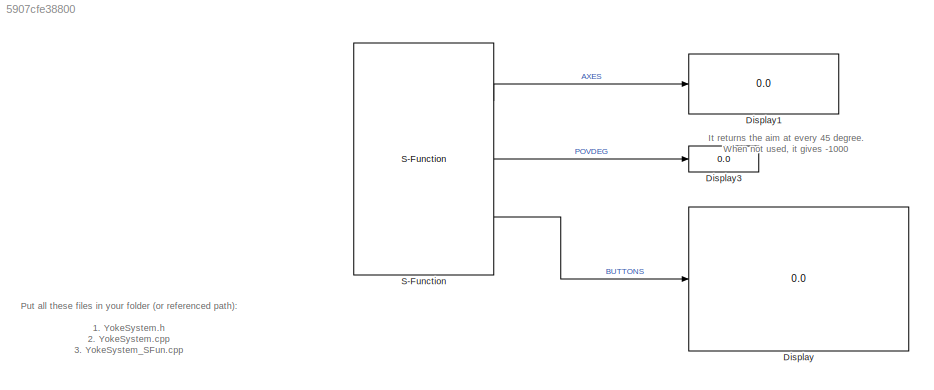
MODEL slx_5907cfe38800
KIND model
CONFIG AbsTol = auto
CONFIG EnableMultiTasking = off
CONFIG FixedStep = 0.1
CONFIG MaxStep = auto
CONFIG MinStep = auto
CONFIG RelTol = 1e-3
CONFIG SampleTimeConstraint = Unconstrained
CONFIG Solver = FixedStepDiscrete
CONFIG SolverName = FixedStepDiscrete
CONFIG StartTime = 0.0
CONFIG StopTime = inf
BLOCK [Display] Display
  Decimation = 1
  Ports = [1]
BLOCK [Display] Display1
  Decimation = 1
  Ports = [1]
BLOCK [Display] Display3
  Decimation = 1
  Ports = [1]
BLOCK [S-Function] S-Function
  EnableBusSupport = off
  FunctionName = YokeSystem_SFun
  Parameters = 0
  Ports = [0, 3]
  SFcnIsStateOwnerBlock = off
  SFunctionDeploymentMode = off
ANNOTATION (root): It returns the aim at every 45 degree. When not used, it gives -1000
ANNOTATION (root): Put all these files in your folder (or referenced path): 1. YokeSystem.h 2. YokeSystem.cpp 3. YokeSystem_SFun.cpp Make sure to install: 1. DirectX SDK https://www.microsoft.com/en-us/download/details.aspx?id=6812 2. C++ compiler available for your Matlab 3. Maybe check you DirectX also Before simulation: 1. In Matlab command, do mex -setup and choose the appropriate C++ compiler. 2. Then compile b...<+248ch>
LINE S-Function:1 -> Display1:1
LINE S-Function:2 -> Display3:1
LINE S-Function:3 -> Display:1
